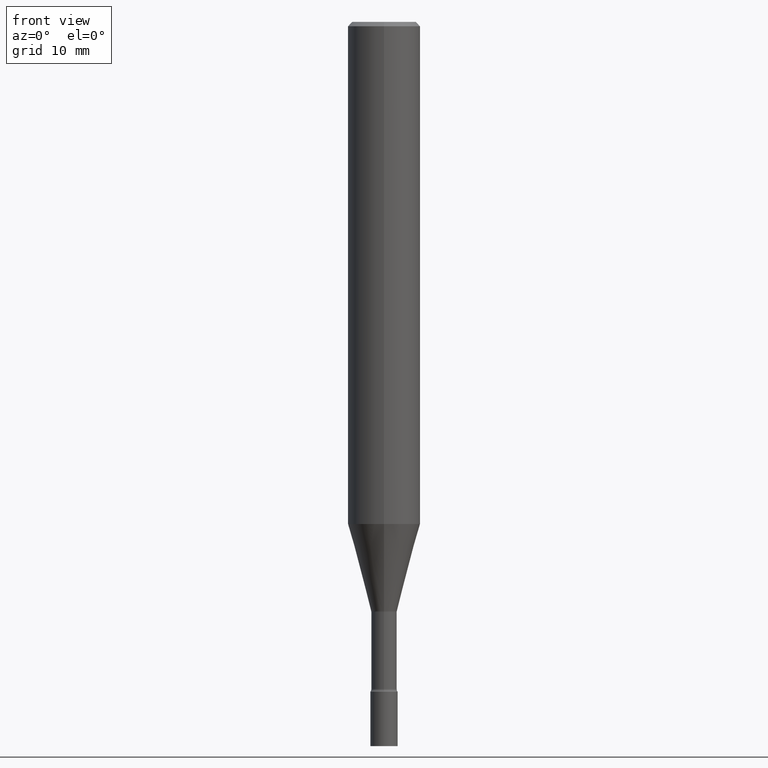
[diagram: clean part render]
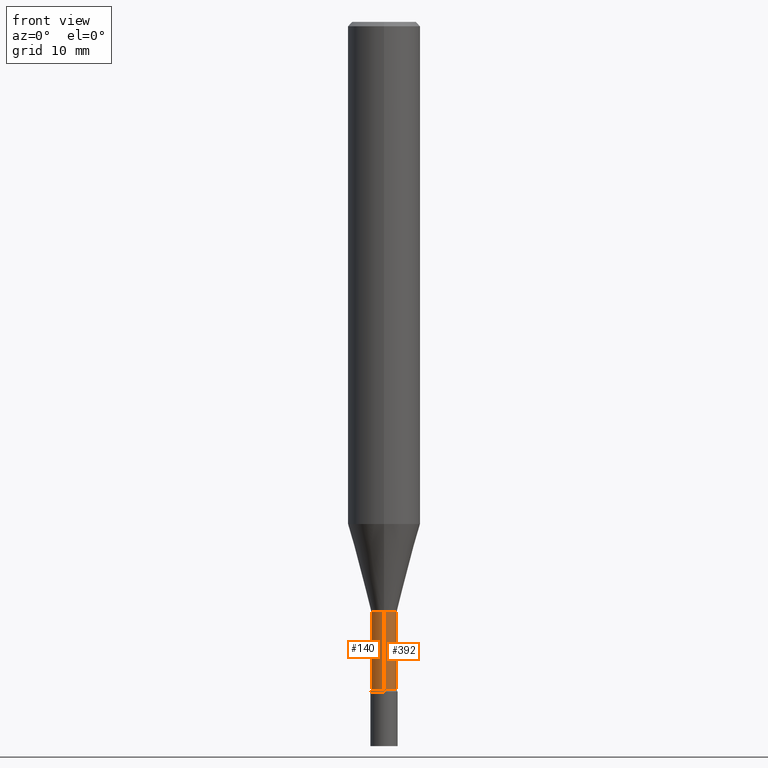
[diagram: same view with one multi-face feature highlighted, each face labeled with its STEP entity id]
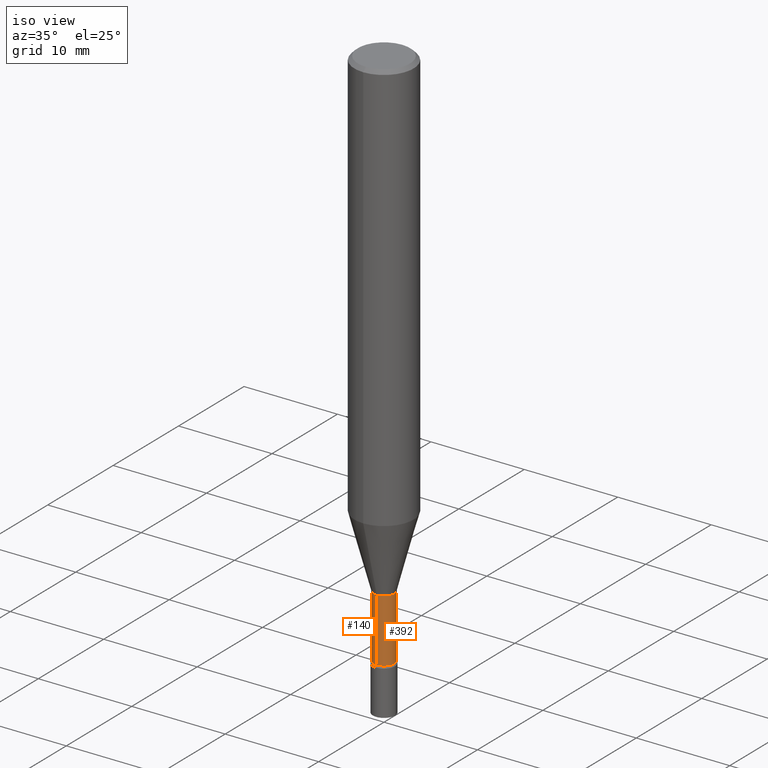
[diagram: same view with one multi-face feature highlighted, each face labeled with its STEP entity id]
A machine part, front view. The highlighted faces form ONE feature: a constant-radius fillet chain: 2 tangent blend faces with common blend radius 1.1201 mm. The faces share edges in the B-rep.
A second angle (iso view) of the same feature is appended — it is thin or edge-on in the first view.
Their STEP definitions:
[1] entity #392 (Cylinder):
#20 = VERTEX_POINT ( 'NONE', #84 ) ;
#46 = DIRECTION ( 'NONE',  ( -6.982962677686265922E-15, -1.000000000000000000, 6.194666652299914454E-15 ) ) ;
#60 = LINE ( 'NONE', #106, #342 ) ;
#84 = CARTESIAN_POINT ( 'NONE',  ( 3.232969447709020781E-16, 0.04409999999999197201, -2.303273030308291780 ) ) ;
#85 = DIRECTION ( 'NONE',  ( -2.445616737647772983E-29, 3.491269492568914221E-15, 1.000000000000000000 ) ) ;
#99 = CYLINDRICAL_SURFACE ( 'NONE', #231, 0.04410000000000000031 ) ;
#106 = CARTESIAN_POINT ( 'NONE',  ( -3.079486540859643229E-16, -0.04410000000000000031, 1.539649846222891150E-16 ) ) ;
#131 = ORIENTED_EDGE ( 'NONE', *, *, #315, .F. ) ;
#145 = CARTESIAN_POINT ( 'NONE',  ( -3.079486540859080672E-16, -0.04410000000000805637, -2.303273030308291336 ) ) ;
#160 = AXIS2_PLACEMENT_3D ( 'NONE', #447, #85, #46 ) ;
#231 = AXIS2_PLACEMENT_3D ( 'NONE', #296, #255, #432 ) ;
#232 = CARTESIAN_POINT ( 'NONE',  ( -3.079486540859143781E-16, -0.04410000000000709186, -2.036974787463810888 ) ) ;
#250 = CARTESIAN_POINT ( 'NONE',  ( 4.981659634388011298E-29, -7.111627932604452215E-15, -2.036974787463810888 ) ) ;
#255 = DIRECTION ( 'NONE',  ( -2.445616737647772983E-29, 3.491269492568914221E-15, 1.000000000000000000 ) ) ;
#257 = VECTOR ( 'NONE', #495, 39.37007874015748143 ) ;
#260 = VERTEX_POINT ( 'NONE', #493 ) ;
#262 = EDGE_CURVE ( 'NONE', #20, #260, #418, .T. ) ;
#296 = CARTESIAN_POINT ( 'NONE',  ( 0.000000000000000000, 0.000000000000000000, 0.000000000000000000 ) ) ;
#315 = EDGE_CURVE ( 'NONE', #484, #260, #419, .T. ) ;
#332 = EDGE_CURVE ( 'NONE', #376, #20, #451, .T. ) ;
#334 = CARTESIAN_POINT ( 'NONE',  ( 3.133493464702041349E-16, 0.04410000000000000031, -1.539649846222891150E-16 ) ) ;
#342 = VECTOR ( 'NONE', #469, 39.37007874015748143 ) ;
#345 = FACE_OUTER_BOUND ( 'NONE', #374, .T. ) ;
#364 = AXIS2_PLACEMENT_3D ( 'NONE', #250, #370, #380 ) ;
#370 = DIRECTION ( 'NONE',  ( -2.445616737647772983E-29, 3.491269492568914221E-15, 1.000000000000000000 ) ) ;
#374 = EDGE_LOOP ( 'NONE', ( #379, #456, #131, #476 ) ) ;
#376 = VERTEX_POINT ( 'NONE', #145 ) ;
#379 = ORIENTED_EDGE ( 'NONE', *, *, #332, .T. ) ;
#380 = DIRECTION ( 'NONE',  ( -6.982962677686265922E-15, -1.000000000000000000, 6.194666652299919187E-15 ) ) ;
#392 = ADVANCED_FACE ( 'NONE', ( #345 ), #99, .T. ) ;
#411 = EDGE_CURVE ( 'NONE', #376, #484, #60, .T. ) ;
#418 = LINE ( 'NONE', #334, #257 ) ;
#419 = CIRCLE ( 'NONE', #364, 0.04409999999999997949 ) ;
#432 = DIRECTION ( 'NONE',  ( -6.982962677686265922E-15, -1.000000000000000000, 3.491269492568914221E-15 ) ) ;
#447 = CARTESIAN_POINT ( 'NONE',  ( 5.632923074294664683E-29, -8.041346863772093208E-15, -2.303273030308291336 ) ) ;
#451 = CIRCLE ( 'NONE', #160, 0.04410000000000001419 ) ;
#456 = ORIENTED_EDGE ( 'NONE', *, *, #262, .T. ) ;
#469 = DIRECTION ( 'NONE',  ( -2.445616737647772983E-29, 3.491269492568914221E-15, 1.000000000000000000 ) ) ;
#476 = ORIENTED_EDGE ( 'NONE', *, *, #411, .F. ) ;
#484 = VERTEX_POINT ( 'NONE', #232 ) ;
#493 = CARTESIAN_POINT ( 'NONE',  ( 3.133493464702603905E-16, 0.04409999999999286713, -2.036974787463811332 ) ) ;
#495 = DIRECTION ( 'NONE',  ( -2.445616737647772983E-29, 3.491269492568914221E-15, 1.000000000000000000 ) ) ;
[2] entity #140 (Cylinder):
#20 = VERTEX_POINT ( 'NONE', #84 ) ;
#44 = DIRECTION ( 'NONE',  ( -6.982962677686265922E-15, -1.000000000000000000, 3.491269492568914221E-15 ) ) ;
#54 = AXIS2_PLACEMENT_3D ( 'NONE', #388, #221, #348 ) ;
#60 = LINE ( 'NONE', #106, #342 ) ;
#75 = CARTESIAN_POINT ( 'NONE',  ( 0.000000000000000000, 0.000000000000000000, 0.000000000000000000 ) ) ;
#84 = CARTESIAN_POINT ( 'NONE',  ( 3.232969447709020781E-16, 0.04409999999999197201, -2.303273030308291780 ) ) ;
#98 = ORIENTED_EDGE ( 'NONE', *, *, #453, .F. ) ;
#106 = CARTESIAN_POINT ( 'NONE',  ( -3.079486540859643229E-16, -0.04410000000000000031, 1.539649846222891150E-16 ) ) ;
#136 = CYLINDRICAL_SURFACE ( 'NONE', #302, 0.04410000000000000031 ) ;
#140 = ADVANCED_FACE ( 'NONE', ( #254 ), #136, .T. ) ;
#143 = CIRCLE ( 'NONE', #54, 0.04409999999999997949 ) ;
#145 = CARTESIAN_POINT ( 'NONE',  ( -3.079486540859080672E-16, -0.04410000000000805637, -2.303273030308291336 ) ) ;
#182 = DIRECTION ( 'NONE',  ( -2.445616737647772983E-29, 3.491269492568914221E-15, 1.000000000000000000 ) ) ;
#215 = AXIS2_PLACEMENT_3D ( 'NONE', #385, #182, #306 ) ;
#221 = DIRECTION ( 'NONE',  ( -2.445616737647772983E-29, 3.491269492568914221E-15, 1.000000000000000000 ) ) ;
#224 = ORIENTED_EDGE ( 'NONE', *, *, #411, .T. ) ;
#232 = CARTESIAN_POINT ( 'NONE',  ( -3.079486540859143781E-16, -0.04410000000000709186, -2.036974787463810888 ) ) ;
#254 = FACE_OUTER_BOUND ( 'NONE', #382, .T. ) ;
#257 = VECTOR ( 'NONE', #495, 39.37007874015748143 ) ;
#260 = VERTEX_POINT ( 'NONE', #493 ) ;
#262 = EDGE_CURVE ( 'NONE', #20, #260, #418, .T. ) ;
#287 = ORIENTED_EDGE ( 'NONE', *, *, #262, .F. ) ;
#298 = ORIENTED_EDGE ( 'NONE', *, *, #372, .T. ) ;
#302 = AXIS2_PLACEMENT_3D ( 'NONE', #75, #402, #44 ) ;
#306 = DIRECTION ( 'NONE',  ( -6.982962677686265922E-15, -1.000000000000000000, 6.194666652299914454E-15 ) ) ;
#334 = CARTESIAN_POINT ( 'NONE',  ( 3.133493464702041349E-16, 0.04410000000000000031, -1.539649846222891150E-16 ) ) ;
#342 = VECTOR ( 'NONE', #469, 39.37007874015748143 ) ;
#348 = DIRECTION ( 'NONE',  ( -6.982962677686265922E-15, -1.000000000000000000, 6.194666652299919187E-15 ) ) ;
#372 = EDGE_CURVE ( 'NONE', #20, #376, #429, .T. ) ;
#376 = VERTEX_POINT ( 'NONE', #145 ) ;
#382 = EDGE_LOOP ( 'NONE', ( #287, #298, #224, #98 ) ) ;
#385 = CARTESIAN_POINT ( 'NONE',  ( 5.632923074294664683E-29, -8.041346863772093208E-15, -2.303273030308291336 ) ) ;
#388 = CARTESIAN_POINT ( 'NONE',  ( 4.981659634388011298E-29, -7.111627932604452215E-15, -2.036974787463810888 ) ) ;
#402 = DIRECTION ( 'NONE',  ( -2.445616737647772983E-29, 3.491269492568914221E-15, 1.000000000000000000 ) ) ;
#411 = EDGE_CURVE ( 'NONE', #376, #484, #60, .T. ) ;
#418 = LINE ( 'NONE', #334, #257 ) ;
#429 = CIRCLE ( 'NONE', #215, 0.04410000000000001419 ) ;
#453 = EDGE_CURVE ( 'NONE', #260, #484, #143, .T. ) ;
#469 = DIRECTION ( 'NONE',  ( -2.445616737647772983E-29, 3.491269492568914221E-15, 1.000000000000000000 ) ) ;
#484 = VERTEX_POINT ( 'NONE', #232 ) ;
#493 = CARTESIAN_POINT ( 'NONE',  ( 3.133493464702603905E-16, 0.04409999999999286713, -2.036974787463811332 ) ) ;
#495 = DIRECTION ( 'NONE',  ( -2.445616737647772983E-29, 3.491269492568914221E-15, 1.000000000000000000 ) ) ;